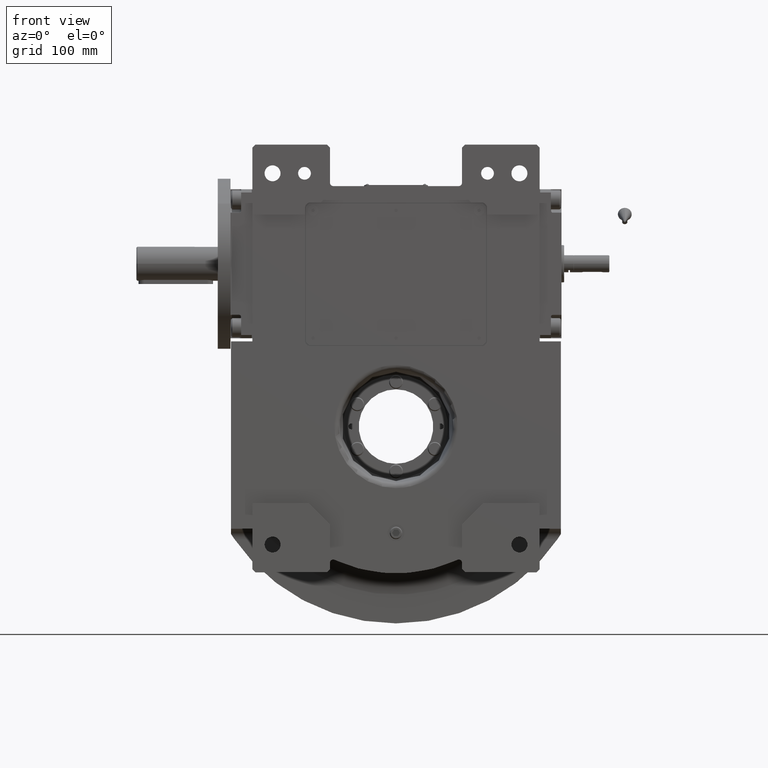
[diagram: clean part render]
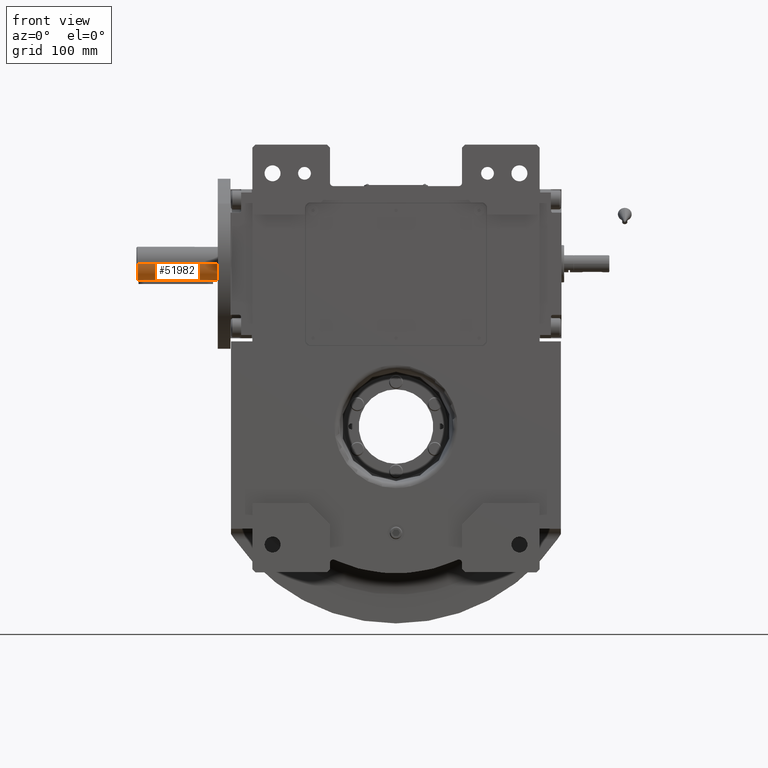
[diagram: same view with one face highlighted and labeled with its STEP entity id]
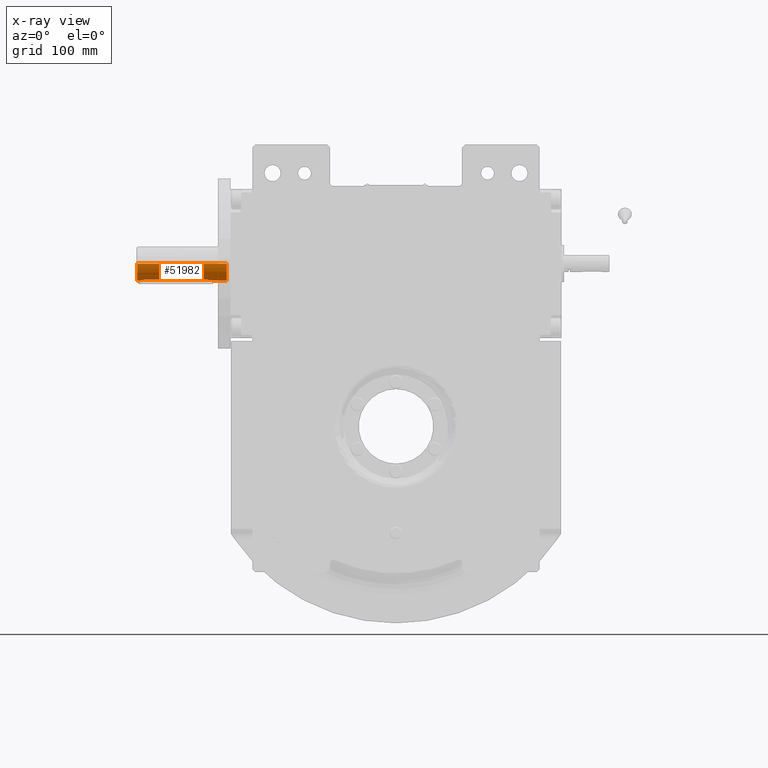
[diagram: x-ray of the same camera — body ghosted, the highlighted face saturated]
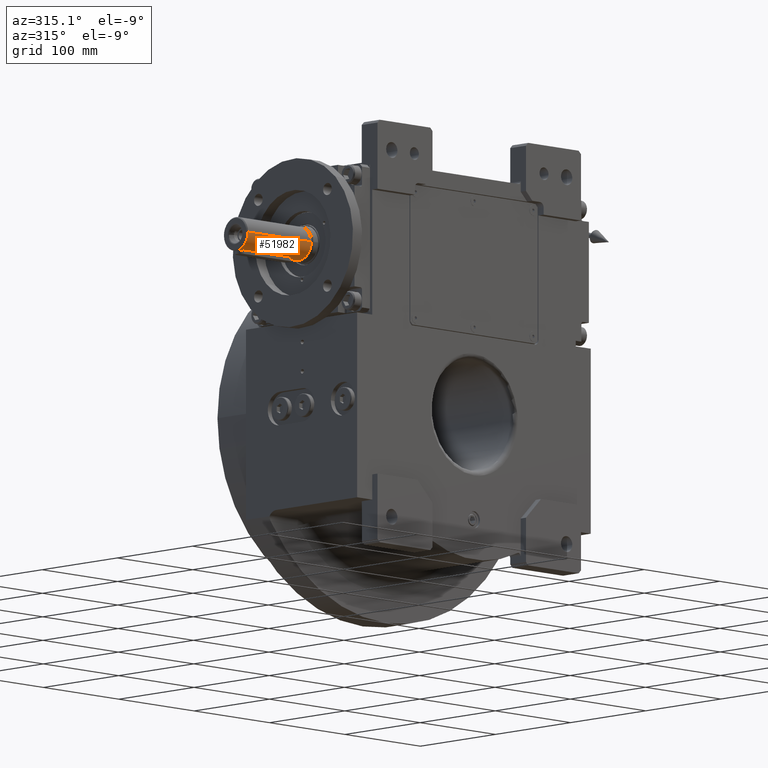
[diagram: same view with one face highlighted and labeled with its STEP entity id]
A machine part, front view. The second image highlights one B-rep face of the part: STEP entity #51982.
The next image is the same camera in x-ray: the body ghosted, the highlighted face saturated — about 0% of this face is hidden behind the body in this view.
A second angle (auxiliary view) of the same face is appended — the face is thin or edge-on in the first view.
In plain terms, the highlighted cylindrical surface (edge-blend (fillet) strip) has radius 16 mm, axis along (1, 0, -0).
Its self-contained STEP definition (entity closure, byte-faithful):
#374 = AXIS2_PLACEMENT_3D ( 'NONE', #43784, #60107, #54443 ) ;
#483 = CARTESIAN_POINT ( 'NONE',  ( -3.498377367177737174, -106.4276022674525422, 15.61294275260246067 ) ) ;
#1178 = CARTESIAN_POINT ( 'NONE',  ( -3.405434675989197135, -106.3383624830759118, 15.63344040735745111 ) ) ;
#1528 = CARTESIAN_POINT ( 'NONE',  ( -4.525797625037338179, -107.8738069938790431, 15.34664145375793964 ) ) ;
#1645 = CARTESIAN_POINT ( 'NONE',  ( -2.146430236222226728, -174.5162943181045989, 15.85501151252561769 ) ) ;
#2005 = CARTESIAN_POINT ( 'NONE',  ( -2.525150736485759051, -174.3185833531221078, 15.79865732756339014 ) ) ;
#2361 = CARTESIAN_POINT ( 'NONE',  ( -1.925988005956297489, -174.6141737341528710, 15.88358944453526611 ) ) ;
#2400 = VECTOR ( 'NONE', #39273, 1000.000000000000000 ) ;
#2501 = CARTESIAN_POINT ( 'NONE',  ( -16.00000000000000000, -175.9999648129115144, 0.000000000000000000 ) ) ;
#2528 = EDGE_CURVE ( 'NONE', #31560, #23496, #58952, .T. ) ;
#2641 = CARTESIAN_POINT ( 'NONE',  ( 1.781333988346452069, -174.6722658820664549, 15.90055341879047290 ) ) ;
#2727 = CARTESIAN_POINT ( 'NONE',  ( -4.756263904564250744, -171.5441708628474373, 15.27721543236828161 ) ) ;
#3084 = CARTESIAN_POINT ( 'NONE',  ( -4.718102155405843767, -171.6585243119826885, 15.28862158529459236 ) ) ;
#3298 = DIRECTION ( 'NONE',  ( 4.942764380421312250E-31, -1.000000000000000000, -1.479114197289397135E-30 ) ) ;
#3544 = CARTESIAN_POINT ( 'NONE',  ( -16.00000000000000000, -175.9999648129115144, 0.000000000000000000 ) ) ;
#3738 = FACE_OUTER_BOUND ( 'NONE', #21420, .T. ) ;
#4038 = CARTESIAN_POINT ( 'NONE',  ( 2.525150736492224990, -105.6814166469419263, 15.79865732754404206 ) ) ;
#4398 = CARTESIAN_POINT ( 'NONE',  ( 0.6243497753413201901, -105.0000000266887668, 15.99998860649330368 ) ) ;
#4407 = CARTESIAN_POINT ( 'NONE',  ( 8.057761890285354056, -175.9997184504716756, 13.98033618904437247 ) ) ;
#4635 = CARTESIAN_POINT ( 'NONE',  ( -5.000000000000138556, -110.0000000000000000, 15.19868415357175628 ) ) ;
#5090 = CARTESIAN_POINT ( 'NONE',  ( 4.669139483225102971, -108.2106113606020870, 15.30329184103299767 ) ) ;
#5438 = CARTESIAN_POINT ( 'NONE',  ( 3.668410908133924231, -106.6017902925868697, 15.57408623372261047 ) ) ;
#5448 = CARTESIAN_POINT ( 'NONE',  ( -12.79444431947262295, -175.9997184504770189, 9.832574494758798522 ) ) ;
#6132 = CARTESIAN_POINT ( 'NONE',  ( -2.944484482420079985, -105.9546597716874885, 15.72619983442234037 ) ) ;
#6585 = CARTESIAN_POINT ( 'NONE',  ( -15.99999999999986144, -92.00000000000004263, 1.110223024625156540E-12 ) ) ;
#6744 = CARTESIAN_POINT ( 'NONE',  ( -15.99971843917491121, -175.9997184504789800, 2.094358256394861062 ) ) ;
#6890 = CARTESIAN_POINT ( 'NONE',  ( 3.849540145937369040, -173.2215313786869615, 15.53343502798355402 ) ) ;
#7303 = CARTESIAN_POINT ( 'NONE',  ( -3.574450149056594306, -173.4962911177985632, 15.59572538335525671 ) ) ;
#7584 = CARTESIAN_POINT ( 'NONE',  ( 3.405434651887296216, -173.6616375392484031, 15.63344041350598879 ) ) ;
#7665 = CARTESIAN_POINT ( 'NONE',  ( -2.393006467458904662, -174.3923758961789474, 15.81937783149752264 ) ) ;
#7944 = CARTESIAN_POINT ( 'NONE',  ( 0.6327921691615167044, -174.9706704803382706, 15.99034937087249020 ) ) ;
#8036 = CARTESIAN_POINT ( 'NONE',  ( -4.867557027895011323, -171.1549075606457109, 15.24386830784559166 ) ) ;
#8453 = VERTEX_POINT ( 'NONE', #3544 ) ;
#8744 = CARTESIAN_POINT ( 'NONE',  ( -4.165632612344857932, -172.7702218866650412, 15.45021997583785733 ) ) ;
#10086 = CARTESIAN_POINT ( 'NONE',  ( -4.766291426369531289E-27, -91.00000000000004263, 1.110223024625156540E-12 ) ) ;
#10416 = CARTESIAN_POINT ( 'NONE',  ( 3.554066882983939024, -106.4829988508953278, 15.60037094679807623 ) ) ;
#10752 = CARTESIAN_POINT ( 'NONE',  ( 1.968356883522798473, -105.4037018895609492, 15.87837384488786974 ) ) ;
#10895 = CARTESIAN_POINT ( 'NONE',  ( 5.313291620398132204E-11, -174.9999999999946851, 16.00000000000035527 ) ) ;
#11114 = CARTESIAN_POINT ( 'NONE',  ( -4.498648993993802137, -107.8167391021480768, 15.35487046370130138 ) ) ;
#11744 = VERTEX_POINT ( 'NONE', #44889 ) ;
#12139 = VECTOR ( 'NONE', #22303, 1000.000000000000000 ) ;
#12144 = CARTESIAN_POINT ( 'NONE',  ( -4.408661359484693953, -107.6374613877471091, 15.38176267045365719 ) ) ;
#12200 = CARTESIAN_POINT ( 'NONE',  ( 1.901096033039855415, -174.6244851487697929, 15.88659348610718247 ) ) ;
#12804 = EDGE_CURVE ( 'NONE', #23504, #11744, #61747, .T. ) ;
#12906 = CARTESIAN_POINT ( 'NONE',  ( 1.641085109088819216, -174.7243599106301417, 15.91585868868474662 ) ) ;
#12947 = LINE ( 'NONE', #69930, #12139 ) ;
#12979 = CARTESIAN_POINT ( 'NONE',  ( -2.016703696296870518, -174.5754254327647743, 15.87227278065966551 ) ) ;
#13210 = ORIENTED_EDGE ( 'NONE', *, *, #2528, .F. ) ;
#13258 = CARTESIAN_POINT ( 'NONE',  ( 1.886151450966133236, -174.6306193508454498, 15.88838177114418748 ) ) ;
#13340 = CARTESIAN_POINT ( 'NONE',  ( -3.554066903150847168, -173.5170011287322893, 15.60037094181565465 ) ) ;
#13361 = VERTEX_POINT ( 'NONE', #35205 ) ;
#13700 = CARTESIAN_POINT ( 'NONE',  ( 5.313291620398132204E-11, -174.9999999999946851, 16.00000000000035527 ) ) ;
#13993 = CIRCLE ( 'NONE', #374, 16.00000000000000000 ) ;
#14689 = CARTESIAN_POINT ( 'NONE',  ( -1.520261324938406711, -105.2359789121011033, 15.92762607909396344 ) ) ;
#14697 = CARTESIAN_POINT ( 'NONE',  ( 13.98033619168604602, -175.9997184504696861, 8.057761885705934546 ) ) ;
#14749 = CARTESIAN_POINT ( 'NONE',  ( -5.000000000000134115, -170.3390160789286938, 15.20209878003567638 ) ) ;
#15032 = CARTESIAN_POINT ( 'NONE',  ( 3.612419400691184723, -106.5429533526154842, 15.58701455204211683 ) ) ;
#15374 = CARTESIAN_POINT ( 'NONE',  ( 2.393006467686443983, -105.6076241039075541, 15.81937783128574360 ) ) ;
#15723 = CARTESIAN_POINT ( 'NONE',  ( 4.999999999999861444, -110.0000000000000000, 15.19868415357175628 ) ) ;
#15963 = DIRECTION ( 'NONE',  ( 4.942764380421312250E-31, -1.000000000000000000, -1.479114197289397135E-30 ) ) ;
#16085 = CARTESIAN_POINT ( 'NONE',  ( 3.887823756276128417, -106.8545105601089773, 15.52151187307475411 ) ) ;
#16215 = CARTESIAN_POINT ( 'NONE',  ( 4.608422007615365246, -171.9397225064684278, 15.32154645277748450 ) ) ;
#16776 = CARTESIAN_POINT ( 'NONE',  ( -1.851240618605923816, -105.3552483767107049, 15.89250616568226349 ) ) ;
#17123 = CARTESIAN_POINT ( 'NONE',  ( -1.901093142807231517, -105.3755136621613673, 15.88659383769978461 ) ) ;
#17460 = CARTESIAN_POINT ( 'NONE',  ( -4.562786596686008167, -107.9550394420377728, 15.33540052730403680 ) ) ;
#17645 = EDGE_CURVE ( 'NONE', #60811, #11744, #12947, .T. ) ;
#17858 = CARTESIAN_POINT ( 'NONE',  ( 2.944484482945680881, -174.0453402275152541, 15.72619983491352258 ) ) ;
#17935 = CARTESIAN_POINT ( 'NONE',  ( -1.968356889969432810, -174.5962981076758922, 15.87837384472285152 ) ) ;
#18218 = CARTESIAN_POINT ( 'NONE',  ( 1.917668066679558470, -174.6176360080673646, 15.88459783718912099 ) ) ;
#18571 = CARTESIAN_POINT ( 'NONE',  ( 4.498649018510096909, -172.1832608469609909, 15.35487045184518173 ) ) ;
#19028 = CARTESIAN_POINT ( 'NONE',  ( -4.624872549669391653, -171.9001522326721840, 15.31659046494081444 ) ) ;
#20070 = CARTESIAN_POINT ( 'NONE',  ( -5.000000000000138556, -170.0000000000000284, 15.19868415357067448 ) ) ;
#20732 = CARTESIAN_POINT ( 'NONE',  ( 4.187892456391975493, -175.9997184504726704, 15.58328859428917212 ) ) ;
#21420 = EDGE_LOOP ( 'NONE', ( #53853, #44209, #33517, #68008 ) ) ;
#21431 = CARTESIAN_POINT ( 'NONE',  ( 4.867556991652702614, -108.8450922862960795, 15.24386832843211970 ) ) ;
#21910 = CARTESIAN_POINT ( 'NONE',  ( 3.461209750402629126, -173.6084202674170456, 15.62119026394124965 ) ) ;
#22122 = CARTESIAN_POINT ( 'NONE',  ( -1.781314500753150121, -105.3277265976681036, 15.90055575771206620 ) ) ;
#22303 = DIRECTION ( 'NONE',  ( 4.942764380421312250E-31, -1.000000000000000000, -1.479114197289397135E-30 ) ) ;
#22817 = VERTEX_POINT ( 'NONE', #49053 ) ;
#23162 = CARTESIAN_POINT ( 'NONE',  ( -4.079656911488219961, -107.0908941435336743, 15.47405687306777899 ) ) ;
#23291 = CARTESIAN_POINT ( 'NONE',  ( -1.934439921254759609, -174.6106350418954207, 15.88255783028485624 ) ) ;
#23496 = VERTEX_POINT ( 'NONE', #33031 ) ;
#23504 = VERTEX_POINT ( 'NONE', #69996 ) ;
#23574 = CARTESIAN_POINT ( 'NONE',  ( 0.3122256971418779226, -175.0000000000001137, 15.99999999095293468 ) ) ;
#24006 = CARTESIAN_POINT ( 'NONE',  ( -1.284088755086401745, -174.8812948121515092, 15.96139755415619454 ) ) ;
#24238 = EDGE_CURVE ( 'NONE', #60811, #31560, #36576, .T. ) ;
#24370 = CARTESIAN_POINT ( 'NONE',  ( -4.669139505929017275, -171.7893885805422372, 15.30329183440117546 ) ) ;
#24499 = VECTOR ( 'NONE', #3298, 1000.000000000000000 ) ;
#24727 = CARTESIAN_POINT ( 'NONE',  ( -4.423259191658338807, -172.3539914131030457, 15.37879413737558565 ) ) ;
#24936 = LINE ( 'NONE', #26336, #24499 ) ;
#25361 = CARTESIAN_POINT ( 'NONE',  ( 15.99992959693365080, -175.9999296258235120, -2.869861848164845242E-07 ) ) ;
#25381 = CYLINDRICAL_SURFACE ( 'NONE', #35901, 16.00000000000000000 ) ;
#25689 = CARTESIAN_POINT ( 'NONE',  ( 4.624872537597644495, -108.0998477379501139, 15.31659046705152605 ) ) ;
#26042 = CARTESIAN_POINT ( 'NONE',  ( 3.824234275130308003, -106.7772708689442709, 15.53709442184049472 ) ) ;
#26073 = DIRECTION ( 'NONE',  ( -4.942764380421312250E-31, 1.000000000000000000, 1.479114197289397135E-30 ) ) ;
#26336 = CARTESIAN_POINT ( 'NONE',  ( 16.00000000000013856, -92.00000000000004263, 0.000000000000000000 ) ) ;
#26402 = CARTESIAN_POINT ( 'NONE',  ( 4.630522814386759833, -108.1136196354361516, 15.31489086736460337 ) ) ;
#26745 = CARTESIAN_POINT ( 'NONE',  ( 4.965425471345655595, -109.3275109925394020, 15.21382166717277507 ) ) ;
#27098 = CARTESIAN_POINT ( 'NONE',  ( 1.284182941681833112, -105.1187443841192248, 15.96138613608962942 ) ) ;
#27200 = LINE ( 'NONE', #6585, #2400 ) ;
#27991 = CARTESIAN_POINT ( 'NONE',  ( 4.999999999999861444, -110.0000000000000000, 15.19868415357175628 ) ) ;
#28136 = CARTESIAN_POINT ( 'NONE',  ( -5.000000000000135891, -109.3218047796234345, 15.20551520141723323 ) ) ;
#28479 = CARTESIAN_POINT ( 'NONE',  ( -3.515886345886653608, -106.4448187658334319, 15.60902033648619636 ) ) ;
#28739 = CARTESIAN_POINT ( 'NONE',  ( -4.187892446179900752, -175.9997184504746031, 15.58328859703156155 ) ) ;
#28951 = CARTESIAN_POINT ( 'NONE',  ( -3.238649381507114455, -173.8324149079645906, 15.67182550053204615 ) ) ;
#29235 = CARTESIAN_POINT ( 'NONE',  ( 4.408661402905032389, -172.3625385298440449, 15.38176265369287243 ) ) ;
#29313 = CARTESIAN_POINT ( 'NONE',  ( -2.206605938816880386, -174.4872877913542197, 15.84658703617194320 ) ) ;
#29599 = CARTESIAN_POINT ( 'NONE',  ( 1.851250620967314964, -174.6447476123462366, 15.89250495800014917 ) ) ;
#30038 = CARTESIAN_POINT ( 'NONE',  ( -4.618544423199874238, -171.9154785357052617, 15.31849460222725767 ) ) ;
#30388 = CARTESIAN_POINT ( 'NONE',  ( -3.887823734884315208, -173.1454894660952277, 15.52151187829318069 ) ) ;
#31018 = CARTESIAN_POINT ( 'NONE',  ( 4.621093044236628700, -108.0906745472534283, 15.31772759026426556 ) ) ;
#31560 = VERTEX_POINT ( 'NONE', #50331 ) ;
#31679 = B_SPLINE_CURVE_WITH_KNOTS ( 'NONE', 3,
 ( #20070, #14749, #56696, #8036, #41088, #2727, #3084, #24370, #46059, #67705, #19028, #35390, #30038, #62724, #24727, #8744, #51750, #30388, #46421, #68063, #52100, #50667, #7303, #13340, #28951, #40356, #2005, #7665, #29313, #1645, #51021, #12979, #17935, #67689, #23291, #62010, #2361, #24006, #51381, #13700 ),
 .UNSPECIFIED., .F., .F.,
 ( 4, 2, 2, 1, 1, 1, 1, 2, 2, 2, 2, 2, 1, 2, 2, 2, 2, 2, 1, 1, 1, 2, 2, 4 ),
 ( 0.000000000000000000, 0.06249999999974178988, 0.09374999999961010355, 0.1093749999995442812, 0.1171874999995138611, 0.1210937499994961947, 0.1230468749994897970, 0.1240234374994866051, 0.1249999999994833993, 0.1874999999995441702, 0.2187499999995767552, 0.2343749999995930755, 0.2421874999996027900, 0.2460937499996075917, 0.2499999999996124211, 0.3124999999997319922, 0.3437499999997904454, 0.3593749999998195888, 0.3671874999998327449, 0.3710937499998393507, 0.3730468749998426259, 0.3740234374998443467, 0.3749999999998460121, 0.5000000000000000000 ),
 .UNSPECIFIED. ) ;
#31750 = EDGE_CURVE ( 'NONE', #23496, #23504, #31679, .T. ) ;
#32420 = CARTESIAN_POINT ( 'NONE',  ( 1.944558300451529220, -105.3936145287664488, 15.88131851426232188 ) ) ;
#32567 = CARTESIAN_POINT ( 'NONE',  ( 4.999999999999861444, -170.0000000000000284, 15.19868415357067448 ) ) ;
#33031 = CARTESIAN_POINT ( 'NONE',  ( -5.000000000000138556, -170.0000000000000284, 15.19868415357067448 ) ) ;
#33135 = CARTESIAN_POINT ( 'NONE',  ( -3.164321918710325310, -106.1275642804206427, 15.68349674330486998 ) ) ;
#33517 = ORIENTED_EDGE ( 'NONE', *, *, #58095, .T. ) ;
#33833 = EDGE_CURVE ( 'NONE', #13361, #66300, #13993, .T. ) ;
#33877 = CARTESIAN_POINT ( 'NONE',  ( 3.498377336807582783, -173.5723977622739369, 15.61294276026346495 ) ) ;
#34175 = CARTESIAN_POINT ( 'NONE',  ( -2.135012641283053014, -105.4728101334695509, 15.85825828668605375 ) ) ;
#34236 = CARTESIAN_POINT ( 'NONE',  ( 3.238304933499718707, -173.8109321357525801, 15.66861648482509928 ) ) ;
#34577 = CARTESIAN_POINT ( 'NONE',  ( 2.387074879022356821, -174.4054587999060573, 15.82198958278156731 ) ) ;
#35205 = CARTESIAN_POINT ( 'NONE',  ( 16.00000000000013856, -92.00000000000004263, -5.223071974924664573E-09 ) ) ;
#35390 = CARTESIAN_POINT ( 'NONE',  ( -4.621093055307163411, -171.9093254259571211, 15.31772758855329641 ) ) ;
#35901 = AXIS2_PLACEMENT_3D ( 'NONE', #10086, #26073, #59105 ) ;
#36076 = ORIENTED_EDGE ( 'NONE', *, *, #31750, .F. ) ;
#36371 = CARTESIAN_POINT ( 'NONE',  ( -0.3121745670716586929, -104.9999999866555953, 16.00000569675394146 ) ) ;
#36380 = CARTESIAN_POINT ( 'NONE',  ( 12.79444432592120506, -175.9997184504701977, 9.832574486378863554 ) ) ;
#36576 = B_SPLINE_CURVE_WITH_KNOTS ( 'NONE', 3,
 ( #15723, #42055, #26745, #21431, #63693, #36716, #47745, #5090, #69739, #26402, #25689, #31018, #41701, #48088, #42406, #37414, #64033, #16085, #26042, #59076, #5438, #15032, #48442, #10416, #53765, #43102, #4038, #15374, #64736, #68681, #53062, #59424, #10752, #32420, #37065, #54114, #47387, #27098, #4398, #36371, #69400, #58712, #63353, #14689, #52714, #22122, #16776, #38128, #17123, #59773, #65444, #34175, #55496, #44157, #6132, #33135, #65793, #55151, #1178, #38840, #483, #28479, #49845, #23162, #44517, #12144, #11114, #1528, #17460, #49146, #54809, #38480, #48793, #54463, #43810, #60128, #28136, #66137 ),
 .UNSPECIFIED., .F., .F.,
 ( 4, 2, 2, 1, 1, 1, 1, 2, 2, 2, 2, 2, 1, 2, 2, 2, 2, 2, 1, 1, 1, 2, 2, 2, 2, 2, 1, 1, 1, 1, 2, 2, 2, 2, 2, 1, 2, 2, 2, 2, 2, 1, 1, 1, 2, 2, 4 ),
 ( 0.000000000000000000, 0.06250000000009880985, 0.09375000000014821477, 0.1093750000001741940, 0.1171875000001872252, 0.1210937500001937339, 0.1230468750001970230, 0.1240234375001974115, 0.1250000000001978140, 0.1875000000002594869, 0.2187500000002903788, 0.2343750000003058109, 0.2421875000003135270, 0.2460937500003166634, 0.2500000000003197997, 0.3125000000003606004, 0.3437500000003809730, 0.3593750000003904654, 0.3671875000003951839, 0.3710937500003976264, 0.3730468750003981260, 0.3740234375003984035, 0.3750000000003986811, 0.5000000000004214407, 0.5625000000004327649, 0.5937500000004386491, 0.6093750000004415357, 0.6171875000004430900, 0.6210937500004433121, 0.6230468750004434231, 0.6240234375004430900, 0.6250000000004427569, 0.6875000000003906875, 0.7187500000003653744, 0.7343750000003533840, 0.7421875000003468337, 0.7460937500003435030, 0.7500000000003402834, 0.8125000000002957634, 0.8437500000002724487, 0.8593750000002606804, 0.8671875000002532419, 0.8710937500002493561, 0.8730468750002492451, 0.8740234375002473577, 0.8750000000002454703, 1.000000000000000000 ),
 .UNSPECIFIED. ) ;
#36716 = CARTESIAN_POINT ( 'NONE',  ( 4.756263868774563086, -108.4558290274772645, 15.27721544661873487 ) ) ;
#37065 = CARTESIAN_POINT ( 'NONE',  ( 1.934439913708312364, -105.3893649549384719, 15.88255783055396364 ) ) ;
#37414 = CARTESIAN_POINT ( 'NONE',  ( 4.165632648238488223, -107.2297781673014612, 15.45021996522048369 ) ) ;
#37905 = CARTESIAN_POINT ( 'NONE',  ( 4.612250066127206338, -171.9305854389837123, 15.32039114281452719 ) ) ;
#38128 = CARTESIAN_POINT ( 'NONE',  ( -1.886146396707425676, -105.3693785841516615, 15.88838238395185520 ) ) ;
#38480 = CARTESIAN_POINT ( 'NONE',  ( -4.608422019740820552, -108.0602775223209449, 15.32154645228749601 ) ) ;
#38840 = CARTESIAN_POINT ( 'NONE',  ( -3.461209778241840951, -106.3915797592720907, 15.62119025689471563 ) ) ;
#39227 = CARTESIAN_POINT ( 'NONE',  ( 4.614785037185656691, -171.9245180878010331, 15.31962667882449303 ) ) ;
#39273 = DIRECTION ( 'NONE',  ( 4.942764380421312250E-31, -1.000000000000000000, -1.479114197289397135E-30 ) ) ;
#39574 = CARTESIAN_POINT ( 'NONE',  ( 3.164321908911770009, -173.8724357274776651, 15.68349674615492440 ) ) ;
#39935 = CARTESIAN_POINT ( 'NONE',  ( 3.349661923690783638, -173.7124413319789937, 15.64532724521492568 ) ) ;
#40272 = CARTESIAN_POINT ( 'NONE',  ( 4.525797642340783078, -172.1261929687728127, 15.34664144401095953 ) ) ;
#40356 = CARTESIAN_POINT ( 'NONE',  ( -2.938860594008560145, -174.0582375593762947, 15.72875271330742919 ) ) ;
#41088 = CARTESIAN_POINT ( 'NONE',  ( -4.827284190570587441, -171.3127708397025799, 15.25596092159289263 ) ) ;
#41553 = ORIENTED_EDGE ( 'NONE', *, *, #17645, .T. ) ;
#41701 = CARTESIAN_POINT ( 'NONE',  ( 4.618544412805452914, -108.0845214392343792, 15.31849460367012483 ) ) ;
#42055 = CARTESIAN_POINT ( 'NONE',  ( 4.999999999999864109, -109.6609838220830397, 15.20209879347037862 ) ) ;
#42406 = CARTESIAN_POINT ( 'NONE',  ( 4.423259222358129072, -107.6460086445470097, 15.37879412587411565 ) ) ;
#43102 = CARTESIAN_POINT ( 'NONE',  ( 2.938860590054544364, -105.9417624380161556, 15.72875271442039313 ) ) ;
#43784 = CARTESIAN_POINT ( 'NONE',  ( -1.776356839405015185E-15, -92.00000000000004263, 1.110223024625156540E-12 ) ) ;
#43810 = CARTESIAN_POINT ( 'NONE',  ( -4.615392616248870539, -108.0769358910851849, 15.31944343149824661 ) ) ;
#43967 = ORIENTED_EDGE ( 'NONE', *, *, #12804, .F. ) ;
#44157 = CARTESIAN_POINT ( 'NONE',  ( -2.800794997742038994, -105.8548708331367720, 15.75208496768689237 ) ) ;
#44209 = ORIENTED_EDGE ( 'NONE', *, *, #33833, .T. ) ;
#44517 = CARTESIAN_POINT ( 'NONE',  ( -4.337297769118607427, -107.5071156440992297, 15.40263104418491480 ) ) ;
#44889 = CARTESIAN_POINT ( 'NONE',  ( 4.999999999999861444, -170.0000000000000284, 15.19868415357067448 ) ) ;
#45115 = CARTESIAN_POINT ( 'NONE',  ( -8.057761881122246450, -175.9997184504755694, 13.98033619432118613 ) ) ;
#45258 = CARTESIAN_POINT ( 'NONE',  ( 2.800795002737797912, -174.1451291634364793, 15.75208496711142203 ) ) ;
#45621 = CARTESIAN_POINT ( 'NONE',  ( 1.911056150690432887, -174.6203780588758718, 15.88539658387009368 ) ) ;
#46059 = CARTESIAN_POINT ( 'NONE',  ( -4.643573662461586871, -171.8541614478900215, 15.31096772662760763 ) ) ;
#46421 = CARTESIAN_POINT ( 'NONE',  ( -3.824234259365659749, -173.2227291493914549, 15.53709442545462949 ) ) ;
#47041 = CARTESIAN_POINT ( 'NONE',  ( 15.99971844055797554, -175.9997184504682366, 2.094358245911764005 ) ) ;
#47387 = CARTESIAN_POINT ( 'NONE',  ( 1.925987262053965532, -105.3858259562683486, 15.88358953405489338 ) ) ;
#47745 = CARTESIAN_POINT ( 'NONE',  ( 4.718102123507710743, -108.3414755987175369, 15.28862159652911323 ) ) ;
#48088 = CARTESIAN_POINT ( 'NONE',  ( 4.537307030912999473, -107.8890043364935991, 15.34294727470882869 ) ) ;
#48095 = CARTESIAN_POINT ( 'NONE',  ( 9.832574490570140213, -175.9997184504712209, 12.79444432269898790 ) ) ;
#48442 = CARTESIAN_POINT ( 'NONE',  ( 3.574450134944621382, -106.5037088677461412, 15.59572538697698540 ) ) ;
#48793 = CARTESIAN_POINT ( 'NONE',  ( -4.612250079931190960, -108.0694145939914819, 15.32039114167898575 ) ) ;
#48934 = CARTESIAN_POINT ( 'NONE',  ( 1.116640148699735491, -174.8764856727644883, 15.96139752420117475 ) ) ;
#49050 = ORIENTED_EDGE ( 'NONE', *, *, #24238, .F. ) ;
#49053 = CARTESIAN_POINT ( 'NONE',  ( 15.99992959693365080, -175.9999296258235120, -2.869861848164845242E-07 ) ) ;
#49146 = CARTESIAN_POINT ( 'NONE',  ( -4.580346926812352670, -107.9945644818555479, 15.33005571119236876 ) ) ;
#49758 = CARTESIAN_POINT ( 'NONE',  ( -13.98033618639910713, -175.9997184504775021, 8.057761894863233465 ) ) ;
#49845 = CARTESIAN_POINT ( 'NONE',  ( -3.849540105177092109, -106.7784685864073850, 15.53343503590845742 ) ) ;
#50331 = CARTESIAN_POINT ( 'NONE',  ( -5.000000000000138556, -110.0000000000000000, 15.19868415357175628 ) ) ;
#50667 = CARTESIAN_POINT ( 'NONE',  ( -3.612419409658276681, -173.4570466379862523, 15.58701454958676536 ) ) ;
#50803 = CARTESIAN_POINT ( 'NONE',  ( -2.094358240668568794, -175.9997184504740346, 15.99971844123841080 ) ) ;
#51021 = CARTESIAN_POINT ( 'NONE',  ( -2.059406507139105447, -174.5562993887618006, 15.86668033924943799 ) ) ;
#51101 = EDGE_CURVE ( 'NONE', #13361, #22817, #24936, .T. ) ;
#51161 = CARTESIAN_POINT ( 'NONE',  ( 2.094358251153140671, -175.9997184504731251, 15.99971843986694786 ) ) ;
#51307 = CARTESIAN_POINT ( 'NONE',  ( 4.580346926130827612, -172.0054355194364462, 15.33005570743581103 ) ) ;
#51381 = CARTESIAN_POINT ( 'NONE',  ( -0.6244513942841789511, -175.0000000000000284, 16.00000001809295469 ) ) ;
#51750 = CARTESIAN_POINT ( 'NONE',  ( -4.065212136835770984, -172.9173892064484050, 15.47697118125947924 ) ) ;
#51982 = ADVANCED_FACE ( 'NONE', ( #3738, #64414 ), #25381, .T. ) ;
#52100 = CARTESIAN_POINT ( 'NONE',  ( -3.668410909760724703, -173.3982097054689575, 15.57408623296219119 ) ) ;
#52714 = CARTESIAN_POINT ( 'NONE',  ( -1.641048339687907864, -105.2756270077243244, 15.91586305604761620 ) ) ;
#53062 = CARTESIAN_POINT ( 'NONE',  ( 2.059406503121420151, -105.4437006094178031, 15.86668033920223309 ) ) ;
#53765 = CARTESIAN_POINT ( 'NONE',  ( 3.238649370329540034, -106.1675850841560731, 15.67182550313988365 ) ) ;
#53853 = ORIENTED_EDGE ( 'NONE', *, *, #51101, .F. ) ;
#54114 = CARTESIAN_POINT ( 'NONE',  ( 1.927712398617243084, -105.3865481245910019, 15.88337900033309680 ) ) ;
#54324 = VECTOR ( 'NONE', #15963, 1000.000000000000000 ) ;
#54443 = DIRECTION ( 'NONE',  ( 1.000000000000000000, 0.000000000000000000, -8.770761894538731936E-15 ) ) ;
#54463 = CARTESIAN_POINT ( 'NONE',  ( -4.614785052112674535, -108.0754819479891040, 15.31962667725487925 ) ) ;
#54809 = CARTESIAN_POINT ( 'NONE',  ( -4.599309063724760449, -108.0387062226750743, 15.32430247484716190 ) ) ;
#55151 = CARTESIAN_POINT ( 'NONE',  ( -3.349661944258981450, -106.2875586865362436, 15.64532723989325902 ) ) ;
#55496 = CARTESIAN_POINT ( 'NONE',  ( -2.387074870340252897, -105.5945411951969959, 15.82198958503935948 ) ) ;
#55546 = CARTESIAN_POINT ( 'NONE',  ( 4.999999999999864997, -170.6781955407671774, 15.20551524489780348 ) ) ;
#55904 = CARTESIAN_POINT ( 'NONE',  ( 3.515886308322065723, -173.5551812713646029, 15.60902034579939368 ) ) ;
#56233 = CARTESIAN_POINT ( 'NONE',  ( 4.337297821553628197, -172.4928842646961016, 15.40263102605132772 ) ) ;
#56454 = CARTESIAN_POINT ( 'NONE',  ( -9.832574482183096265, -175.9997184504760241, 12.79444432913830454 ) ) ;
#56696 = CARTESIAN_POINT ( 'NONE',  ( -4.965425491329243712, -170.6724888577816159, 15.21382164691254602 ) ) ;
#57512 = EDGE_LOOP ( 'NONE', ( #41553, #43967, #36076, #13210, #49050 ) ) ;
#58095 = EDGE_CURVE ( 'NONE', #66300, #8453, #27200, .T. ) ;
#58712 = CARTESIAN_POINT ( 'NONE',  ( -1.116565531968048752, -105.1234972410663460, 15.96140608237872982 ) ) ;
#58952 = LINE ( 'NONE', #4635, #54324 ) ;
#59076 = CARTESIAN_POINT ( 'NONE',  ( 3.721565769577001248, -106.6604437520052215, 15.56157171765150160 ) ) ;
#59105 = DIRECTION ( 'NONE',  ( 1.000000000000000000, 0.000000000000000000, -8.881784197001247590E-15 ) ) ;
#59424 = CARTESIAN_POINT ( 'NONE',  ( 2.016703691260996578, -105.4245745650059831, 15.87227278069639702 ) ) ;
#59549 = CARTESIAN_POINT ( 'NONE',  ( 4.615392601031326869, -171.9230641454307431, 15.31944343317825918 ) ) ;
#59773 = CARTESIAN_POINT ( 'NONE',  ( -1.911054712718205373, -105.3796213454433541, 15.88539675992623934 ) ) ;
#60107 = DIRECTION ( 'NONE',  ( 4.942764380421312250E-31, -1.000000000000000000, -1.479114197289397135E-30 ) ) ;
#60128 = CARTESIAN_POINT ( 'NONE',  ( -4.860735413956004614, -108.6674116574155136, 15.24557742582770636 ) ) ;
#60554 = CARTESIAN_POINT ( 'NONE',  ( -15.99999999999986144, -92.00000000000004263, 5.224154442373674101E-09 ) ) ;
#60727 = CARTESIAN_POINT ( 'NONE',  ( -15.58328859291132318, -175.9997184504785537, 4.187892461496488750 ) ) ;
#60811 = VERTEX_POINT ( 'NONE', #27991 ) ;
#60866 = CARTESIAN_POINT ( 'NONE',  ( 4.860735290574178968, -171.3325886533700100, 15.24557746997835217 ) ) ;
#61583 = CARTESIAN_POINT ( 'NONE',  ( 4.079656972016425520, -172.9091057716718183, 15.47405685650667628 ) ) ;
#61747 = B_SPLINE_CURVE_WITH_KNOTS ( 'NONE', 3,
 ( #10895, #23574, #7944, #48934, #65217, #66537, #12906, #2641, #29599, #13258, #12200, #45621, #18218, #67252, #34577, #45258, #17858, #39574, #34236, #39935, #7584, #21910, #33877, #55904, #6890, #61583, #56233, #29235, #18571, #40272, #61926, #51307, #64884, #16215, #37905, #39227, #59549, #60866, #55546, #32567 ),
 .UNSPECIFIED., .F., .F.,
 ( 4, 2, 2, 1, 1, 1, 1, 2, 2, 2, 2, 2, 1, 2, 2, 2, 2, 2, 1, 1, 1, 2, 2, 4 ),
 ( 0.5000000000000000000, 0.5624999999999649170, 0.5937499999999469313, 0.6093749999999372724, 0.6171874999999332756, 0.6210937499999321654, 0.6230468749999326095, 0.6240234374999327205, 0.6249999999999329425, 0.6874999999999646949, 0.7187499999999805711, 0.7343749999999898970, 0.7421874999999932276, 0.7460937499999933387, 0.7499999999999935607, 0.8124999999999724665, 0.8437499999999619194, 0.8593749999999595879, 0.8671874999999584777, 0.8710937499999542588, 0.8730468749999559241, 0.8740234374999567013, 0.8749999999999575895, 1.000000000000000000 ),
 .UNSPECIFIED. ) ;
#61926 = CARTESIAN_POINT ( 'NONE',  ( 4.562786602167671290, -172.0449605455967799, 15.33540052143211518 ) ) ;
#62010 = CARTESIAN_POINT ( 'NONE',  ( -1.927712406391955069, -174.6134518721605104, 15.88337900004204251 ) ) ;
#62724 = CARTESIAN_POINT ( 'NONE',  ( -4.537307018563032202, -172.1109956960747809, 15.34294728213748371 ) ) ;
#63353 = CARTESIAN_POINT ( 'NONE',  ( -1.278327661464280895, -105.1632403328126344, 15.94934210067453684 ) ) ;
#63360 = CARTESIAN_POINT ( 'NONE',  ( 15.58328859566500846, -175.9997184504687766, 4.187892451287400064 ) ) ;
#63693 = CARTESIAN_POINT ( 'NONE',  ( 4.827284151164850989, -108.6872290180365042, 15.25596094063619113 ) ) ;
#64033 = CARTESIAN_POINT ( 'NONE',  ( 4.065212170556849358, -107.0826108395204130, 15.47697117210235085 ) ) ;
#64414 = FACE_BOUND ( 'NONE', #57512, .T. ) ;
#64736 = CARTESIAN_POINT ( 'NONE',  ( 2.206605937440170084, -105.5127122079596802, 15.84658703594902462 ) ) ;
#64884 = CARTESIAN_POINT ( 'NONE',  ( 4.599309055473044694, -171.9612937966052471, 15.32430247386976419 ) ) ;
#65217 = CARTESIAN_POINT ( 'NONE',  ( 1.278395365044282750, -174.8367413287245711, 15.94933425588563836 ) ) ;
#65343 = B_SPLINE_CURVE_WITH_KNOTS ( 'NONE', 3,
 ( #25361, #47041, #63360, #14697, #36380, #48095, #4407, #20732, #51161, #50803, #28739, #45115, #56454, #5448, #49758, #60727, #6744, #2501 ),
 .UNSPECIFIED., .F., .F.,
 ( 4, 2, 2, 2, 2, 2, 2, 2, 4 ),
 ( 0.000000000000000000, 0.1250000000000000000, 0.2500000000000000000, 0.3750000000000000000, 0.5000000000000000000, 0.6250000000000000000, 0.7500000000000000000, 0.8750000000000000000, 1.000000000000000000 ),
 .UNSPECIFIED. ) ;
#65444 = CARTESIAN_POINT ( 'NONE',  ( -1.917668095711791088, -105.3823640039897924, 15.88459783557347826 ) ) ;
#65793 = CARTESIAN_POINT ( 'NONE',  ( -3.238304947336324346, -106.1890678758377931, 15.66861648106229765 ) ) ;
#66137 = CARTESIAN_POINT ( 'NONE',  ( -5.000000000000138556, -110.0000000000000000, 15.19868415357175628 ) ) ;
#66300 = VERTEX_POINT ( 'NONE', #60554 ) ;
#66537 = CARTESIAN_POINT ( 'NONE',  ( 1.520309865132017269, -174.7640054850485001, 15.92762037427466026 ) ) ;
#66682 = EDGE_CURVE ( 'NONE', #22817, #8453, #65343, .T. ) ;
#67252 = CARTESIAN_POINT ( 'NONE',  ( 2.135012639224908249, -174.5271898689431680, 15.85825828533030801 ) ) ;
#67689 = CARTESIAN_POINT ( 'NONE',  ( -1.944558307659599361, -174.6063854681903251, 15.88131851402558148 ) ) ;
#67705 = CARTESIAN_POINT ( 'NONE',  ( -4.630522827935596553, -171.8863803313311962, 15.31489086465910709 ) ) ;
#68008 = ORIENTED_EDGE ( 'NONE', *, *, #66682, .F. ) ;
#68063 = CARTESIAN_POINT ( 'NONE',  ( -3.721565764956118461, -173.3395562530550364, 15.56157171842212605 ) ) ;
#68681 = CARTESIAN_POINT ( 'NONE',  ( 2.146430233990036296, -105.4837056808164704, 15.85501151234523043 ) ) ;
#69400 = CARTESIAN_POINT ( 'NONE',  ( -0.6327160508941181982, -105.0293198273066650, 15.99035792944271428 ) ) ;
#69739 = CARTESIAN_POINT ( 'NONE',  ( 4.643573645637494529, -108.1458385100757340, 15.31096773068704842 ) ) ;
#69930 = CARTESIAN_POINT ( 'NONE',  ( 4.999999999999861444, -110.0000000000000000, 15.19868415357175628 ) ) ;
#69996 = CARTESIAN_POINT ( 'NONE',  ( 5.313291620398132204E-11, -174.9999999999946851, 16.00000000000035527 ) ) ;